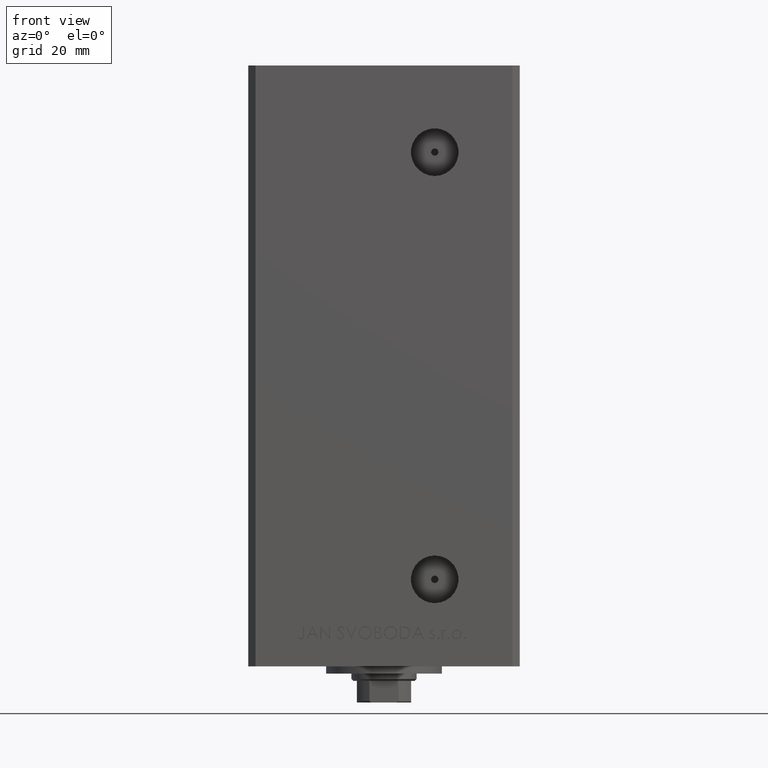
[diagram: clean part render]
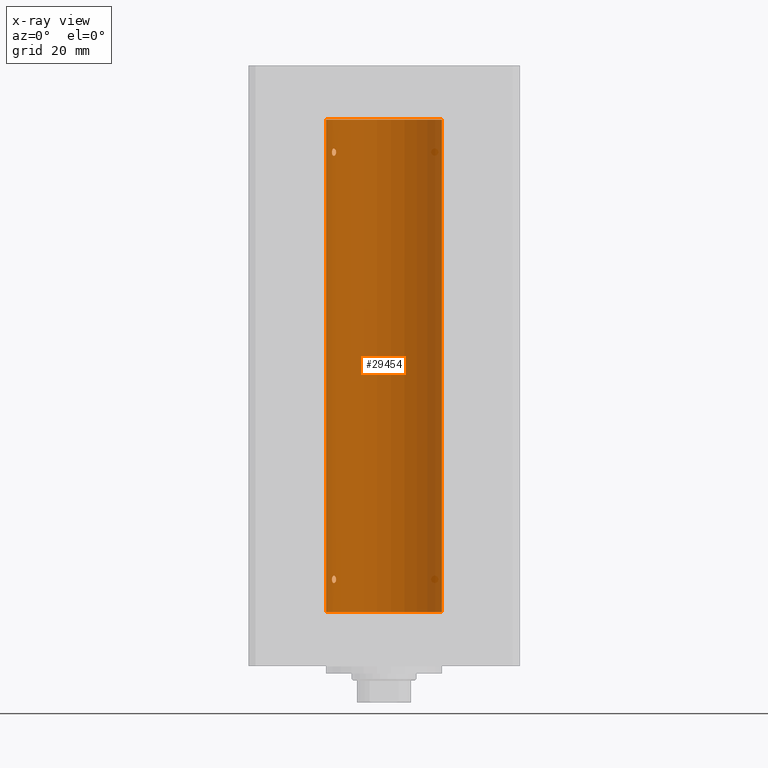
[diagram: x-ray — body ghosted, one internal face saturated and labeled with its STEP entity id]
A machine part, front view, then the same camera in x-ray: the body is ghosted and one INTERNAL B-rep face — a face not visible from any outside direction — is saturated and labeled: STEP entity #29454.
In plain terms, the highlighted cylindrical surface (partial cylindrical patch) has radius 16 mm, axis along (-0, -0, -1).
Its self-contained STEP definition (entity closure, byte-faithful):
#106 = CARTESIAN_POINT ( 'NONE',  ( 16.00000000000000000, 1.959434878635765131E-15, 136.0000000000000000 ) ) ;
#654 = CIRCLE ( 'NONE', #13508, 16.00000000000000000 ) ;
#929 = CARTESIAN_POINT ( 'NONE',  ( -13.77582987033440709, 8.139210687602719929, 126.0021105458418162 ) ) ;
#980 = VERTEX_POINT ( 'NONE', #25932 ) ;
#1410 = EDGE_CURVE ( 'NONE', #24896, #19451, #49692, .T. ) ;
#1881 = CARTESIAN_POINT ( 'NONE',  ( -13.22875655532296335, 8.999999999999982236, 9.000000000000007105 ) ) ;
#2157 = CARTESIAN_POINT ( 'NONE',  ( -13.22875655532295802, 8.999999999999996447, 127.0000000000000000 ) ) ;
#2638 = CARTESIAN_POINT ( 'NONE',  ( -14.17528142432534288, 7.421143801852442934, 8.173943073538671555 ) ) ;
#2669 = ORIENTED_EDGE ( 'NONE', *, *, #36361, .F. ) ;
#2679 = B_SPLINE_CURVE_WITH_KNOTS ( 'NONE', 3,
 ( #21490, #17214, #29012, #9912, #36542, #21735, #20736, #43584, #25245, #40806, #40302, #36792, #9406, #9654, #5883, #24499 ),
 .UNSPECIFIED., .F., .F.,
 ( 4, 2, 2, 2, 2, 2, 2, 4 ),
 ( 0.003377672193071779884, 0.003799209865779855366, 0.004220747538487930849, 0.005063822883904134722, 0.005485360556612237093, 0.005906898229320339463, 0.006328435902028442701, 0.006749973574736545072 ),
 .UNSPECIFIED. ) ;
#3028 = CARTESIAN_POINT ( 'NONE',  ( -14.38749456993815912, 6.999999999999998224, 127.0000000000000000 ) ) ;
#3132 = VECTOR ( 'NONE', #43440, 1000.000000000000000 ) ;
#3889 = B_SPLINE_CURVE_WITH_KNOTS ( 'NONE', 3,
 ( #22206, #6101, #33514, #21464, #48804, #29744, #36767, #13916, #29242, #30481, #19669, #45776, #38005, #42011, #49296, #34492 ),
 .UNSPECIFIED., .F., .F.,
 ( 4, 2, 2, 2, 2, 2, 2, 4 ),
 ( 0.003377672193071775547, 0.003799209865779873581, 0.004220747538487971615, 0.005063822883904167682, 0.005485360556612266583, 0.005906898229320366352, 0.006328435902028466120, 0.006749973574736565021 ),
 .UNSPECIFIED. ) ;
#3977 = B_SPLINE_CURVE_WITH_KNOTS ( 'NONE', 3,
 ( #29788, #17744, #33060, #48352, #13965, #2638, #48854, #33310, #26018, #44097, #48601, #44847, #6657, #9677, #25019, #18243, #6897, #40325, #36318, #1881 ),
 .UNSPECIFIED., .F., .F.,
 ( 4, 2, 2, 2, 2, 2, 2, 2, 2, 4 ),
 ( 0.000000000000000000, 0.0004222090241339719434, 0.0008444180482679438868, 0.001266627072401915830, 0.001688836096535887774, 0.002111045120669859717, 0.002533254144803831660, 0.002955463168937803604, 0.003166567681004789359, 0.003377672193071775547 ),
 .UNSPECIFIED. ) ;
#5429 = CARTESIAN_POINT ( 'NONE',  ( -14.38749456993815912, 6.999999999999998224, 127.0000000000000000 ) ) ;
#5677 = CARTESIAN_POINT ( 'NONE',  ( -14.31660136508398828, 7.144151923086063505, 126.4646217954444580 ) ) ;
#5819 = EDGE_LOOP ( 'NONE', ( #30540, #33335 ) ) ;
#5883 = CARTESIAN_POINT ( 'NONE',  ( -14.38749456993815734, 6.999999999999997335, 127.1426254415242454 ) ) ;
#5930 = CARTESIAN_POINT ( 'NONE',  ( -13.91838063522421010, 7.892966471903945624, 125.9981483133086897 ) ) ;
#6101 = CARTESIAN_POINT ( 'NONE',  ( -13.22875655532296335, 8.999999999999978684, 9.140644760917750133 ) ) ;
#6474 = CARTESIAN_POINT ( 'NONE',  ( -14.38749456993816800, 6.999999999999984013, 9.000000000000007105 ) ) ;
#6657 = CARTESIAN_POINT ( 'NONE',  ( -13.49759407097375608, 8.592283911330213186, 8.184099152127679133 ) ) ;
#6791 = FACE_BOUND ( 'NONE', #5819, .T. ) ;
#6897 = CARTESIAN_POINT ( 'NONE',  ( -13.25390108270226364, 8.962947079338375644, 8.721435762358465738 ) ) ;
#7990 = CARTESIAN_POINT ( 'NONE',  ( -16.00000000000000000, 0.000000000000000000, 136.0000000000000000 ) ) ;
#9256 = LINE ( 'NONE', #28125, #3132 ) ;
#9297 = CIRCLE ( 'NONE', #31092, 16.00000000000000000 ) ;
#9406 = CARTESIAN_POINT ( 'NONE',  ( -14.31650799088418147, 7.144337649771908438, 127.5355226273736662 ) ) ;
#9535 = VERTEX_POINT ( 'NONE', #6474 ) ;
#9654 = CARTESIAN_POINT ( 'NONE',  ( -14.37227256866306213, 7.031482256185711321, 127.2844572409764794 ) ) ;
#9677 = CARTESIAN_POINT ( 'NONE',  ( -13.37674940693423054, 8.779234808442856419, 8.360244157126787812 ) ) ;
#9704 = CARTESIAN_POINT ( 'NONE',  ( -14.17528142432533755, 7.421143801852455368, 126.1739430735386520 ) ) ;
#9912 = CARTESIAN_POINT ( 'NONE',  ( -13.32457971225032622, 8.857769707964648020, 127.5319996627465571 ) ) ;
#10073 = DIRECTION ( 'NONE',  ( -0.000000000000000000, -0.000000000000000000, -1.000000000000000000 ) ) ;
#11269 = VECTOR ( 'NONE', #30870, 1000.000000000000000 ) ;
#13340 = ORIENTED_EDGE ( 'NONE', *, *, #42215, .F. ) ;
#13362 = CARTESIAN_POINT ( 'NONE',  ( -16.00000000000000000, 0.000000000000000000, 136.0000000000000000 ) ) ;
#13484 = CARTESIAN_POINT ( 'NONE',  ( -14.11621438951177687, 7.533308783217008475, 126.1065710718394826 ) ) ;
#13508 = AXIS2_PLACEMENT_3D ( 'NONE', #16888, #20906, #46529 ) ;
#13916 = CARTESIAN_POINT ( 'NONE',  ( -13.91892506969883669, 7.891973478508838902, 10.00155212263245375 ) ) ;
#13965 = CARTESIAN_POINT ( 'NONE',  ( -14.27547848986623258, 7.226527013162171720, 8.352555730181538962 ) ) ;
#14038 = VERTEX_POINT ( 'NONE', #39813 ) ;
#14246 = CARTESIAN_POINT ( 'NONE',  ( -13.25390108270225120, 8.962947079338391632, 126.7214357623584817 ) ) ;
#14491 = CARTESIAN_POINT ( 'NONE',  ( -13.23400746336172240, 8.992294519018086518, 126.8578145590230406 ) ) ;
#14736 = CARTESIAN_POINT ( 'NONE',  ( -13.32426099938365383, 8.858246960865844954, 126.4688748775329969 ) ) ;
#14882 = AXIS2_PLACEMENT_3D ( 'NONE', #40216, #10073, #48489 ) ;
#15889 = CARTESIAN_POINT ( 'NONE',  ( 0.000000000000000000, 0.000000000000000000, 136.0000000000000000 ) ) ;
#16564 = EDGE_CURVE ( 'NONE', #14038, #9535, #3889, .T. ) ;
#16617 = B_SPLINE_CURVE_WITH_KNOTS ( 'NONE', 3,
 ( #5429, #43140, #31843, #5677, #47879, #9704, #13484, #25047, #5930, #929, #47145, #28075, #24306, #39614, #14736, #36842, #14246, #14491, #25293, #2157 ),
 .UNSPECIFIED., .F., .F.,
 ( 4, 2, 2, 2, 2, 2, 2, 2, 2, 4 ),
 ( 0.000000000000000000, 0.0004222090241339633240, 0.0008444180482679266480, 0.001266627072401889809, 0.001688836096535853296, 0.002111045120669816783, 0.002533254144803779619, 0.002955463168937742888, 0.003166567681004761603, 0.003377672193071779884 ),
 .UNSPECIFIED. ) ;
#16888 = CARTESIAN_POINT ( 'NONE',  ( 0.000000000000000000, 0.000000000000000000, 0.000000000000000000 ) ) ;
#16949 = ORIENTED_EDGE ( 'NONE', *, *, #20631, .F. ) ;
#17214 = CARTESIAN_POINT ( 'NONE',  ( -13.22875655532296157, 8.999999999999994671, 127.1406447609177661 ) ) ;
#17519 = EDGE_LOOP ( 'NONE', ( #2669, #16949 ) ) ;
#17744 = CARTESIAN_POINT ( 'NONE',  ( -14.38749456993816445, 6.999999999999982236, 8.857147409635420132 ) ) ;
#18243 = CARTESIAN_POINT ( 'NONE',  ( -13.26838749541401263, 8.941532915076029653, 8.656217793921380022 ) ) ;
#18384 = FACE_BOUND ( 'NONE', #17519, .T. ) ;
#18688 = CARTESIAN_POINT ( 'NONE',  ( -13.22875655532295802, 8.999999999999996447, 127.0000000000000000 ) ) ;
#19451 = VERTEX_POINT ( 'NONE', #41713 ) ;
#19669 = CARTESIAN_POINT ( 'NONE',  ( -14.17576283486775779, 7.420212263225971050, 9.825253034304363808 ) ) ;
#20631 = EDGE_CURVE ( 'NONE', #21666, #29394, #2679, .T. ) ;
#20736 = CARTESIAN_POINT ( 'NONE',  ( -13.70792461986390798, 8.256614593260307444, 127.9966215356423191 ) ) ;
#20906 = DIRECTION ( 'NONE',  ( -0.000000000000000000, 0.000000000000000000, 1.000000000000000000 ) ) ;
#21464 = CARTESIAN_POINT ( 'NONE',  ( -13.32457971225033866, 8.857769707964637362, 9.531999662746560631 ) ) ;
#21490 = CARTESIAN_POINT ( 'NONE',  ( -13.22875655532295802, 8.999999999999996447, 127.0000000000000000 ) ) ;
#21666 = VERTEX_POINT ( 'NONE', #18688 ) ;
#21735 = CARTESIAN_POINT ( 'NONE',  ( -13.55800260393081835, 8.498809056167509368, 127.9036434462101681 ) ) ;
#21899 = EDGE_CURVE ( 'NONE', #28018, #24896, #9297, .T. ) ;
#22206 = CARTESIAN_POINT ( 'NONE',  ( -13.22875655532296335, 8.999999999999982236, 9.000000000000007105 ) ) ;
#22415 = ORIENTED_EDGE ( 'NONE', *, *, #36950, .F. ) ;
#24306 = CARTESIAN_POINT ( 'NONE',  ( -13.49759407097375075, 8.592283911330223845, 126.1840991521276862 ) ) ;
#24499 = CARTESIAN_POINT ( 'NONE',  ( -14.38749456993815912, 6.999999999999998224, 127.0000000000000000 ) ) ;
#24896 = VERTEX_POINT ( 'NONE', #13362 ) ;
#25019 = CARTESIAN_POINT ( 'NONE',  ( -13.32426099938365915, 8.858246960865836073, 8.468874877532975631 ) ) ;
#25047 = CARTESIAN_POINT ( 'NONE',  ( -13.98699950016872151, 7.770591669637114229, 126.0184768166484588 ) ) ;
#25245 = CARTESIAN_POINT ( 'NONE',  ( -13.98878315975728803, 7.767347947480344850, 127.9805461432612645 ) ) ;
#25293 = CARTESIAN_POINT ( 'NONE',  ( -13.22875655532295625, 8.999999999999994671, 126.9295656223616220 ) ) ;
#25932 = CARTESIAN_POINT ( 'NONE',  ( 16.00000000000000000, 1.959434878635765131E-15, 0.000000000000000000 ) ) ;
#26018 = CARTESIAN_POINT ( 'NONE',  ( -13.91838063522421542, 7.892966471903923420, 7.998148313308686141 ) ) ;
#27198 = EDGE_CURVE ( 'NONE', #9535, #14038, #3977, .T. ) ;
#28018 = VERTEX_POINT ( 'NONE', #106 ) ;
#28075 = CARTESIAN_POINT ( 'NONE',  ( -13.56386909142669772, 8.487613976483636691, 126.1182242979960790 ) ) ;
#28125 = CARTESIAN_POINT ( 'NONE',  ( 16.00000000000000000, 1.959434878635765131E-15, 136.0000000000000000 ) ) ;
#29012 = CARTESIAN_POINT ( 'NONE',  ( -13.24976519864029179, 8.969293778684573226, 127.2815352263351514 ) ) ;
#29242 = CARTESIAN_POINT ( 'NONE',  ( -13.98878315975730224, 7.767347947480332415, 9.980546143261287639 ) ) ;
#29394 = VERTEX_POINT ( 'NONE', #3028 ) ;
#29454 = ADVANCED_FACE ( 'NONE', ( #33203, #6791, #18384 ), #47737, .F. ) ;
#29744 = CARTESIAN_POINT ( 'NONE',  ( -13.55800260393082901, 8.498809056167502263, 9.903643446210180556 ) ) ;
#29788 = CARTESIAN_POINT ( 'NONE',  ( -14.38749456993816800, 6.999999999999984013, 9.000000000000007105 ) ) ;
#30481 = CARTESIAN_POINT ( 'NONE',  ( -14.11618354197462644, 7.533333301880464461, 9.893207651933423108 ) ) ;
#30540 = ORIENTED_EDGE ( 'NONE', *, *, #27198, .F. ) ;
#30870 = DIRECTION ( 'NONE',  ( -0.000000000000000000, -0.000000000000000000, -1.000000000000000000 ) ) ;
#31092 = AXIS2_PLACEMENT_3D ( 'NONE', #15889, #38248, #43005 ) ;
#31843 = CARTESIAN_POINT ( 'NONE',  ( -14.37250282441143945, 7.031013007322939323, 126.7168569960372935 ) ) ;
#33060 = CARTESIAN_POINT ( 'NONE',  ( -14.37250282441144655, 7.031013007322923336, 8.716856996037272154 ) ) ;
#33203 = FACE_OUTER_BOUND ( 'NONE', #45773, .T. ) ;
#33310 = CARTESIAN_POINT ( 'NONE',  ( -13.98699950016873039, 7.770591669637105348, 8.018476816648488992 ) ) ;
#33335 = ORIENTED_EDGE ( 'NONE', *, *, #16564, .F. ) ;
#33514 = CARTESIAN_POINT ( 'NONE',  ( -13.24976519864029889, 8.969293778684560792, 9.281535226335167366 ) ) ;
#34492 = CARTESIAN_POINT ( 'NONE',  ( -14.38749456993816800, 6.999999999999984013, 9.000000000000007105 ) ) ;
#35684 = ORIENTED_EDGE ( 'NONE', *, *, #21899, .T. ) ;
#36318 = CARTESIAN_POINT ( 'NONE',  ( -13.22875655532296513, 8.999999999999982236, 8.929565622361650412 ) ) ;
#36361 = EDGE_CURVE ( 'NONE', #29394, #21666, #16617, .T. ) ;
#36542 = CARTESIAN_POINT ( 'NONE',  ( -13.37741691572086111, 8.778212469423007036, 127.6408828602271512 ) ) ;
#36767 = CARTESIAN_POINT ( 'NONE',  ( -13.70792461986391864, 8.256614593260295010, 9.996621535642280065 ) ) ;
#36792 = CARTESIAN_POINT ( 'NONE',  ( -14.27521483392928836, 7.227035590538638310, 127.6478598706881371 ) ) ;
#36842 = CARTESIAN_POINT ( 'NONE',  ( -13.26838749541400908, 8.941532915076043864, 126.6562177939213854 ) ) ;
#36950 = EDGE_CURVE ( 'NONE', #980, #19451, #654, .T. ) ;
#38005 = CARTESIAN_POINT ( 'NONE',  ( -14.31650799088419213, 7.144337649771898668, 9.535522627373698157 ) ) ;
#38248 = DIRECTION ( 'NONE',  ( -0.000000000000000000, 0.000000000000000000, 1.000000000000000000 ) ) ;
#39614 = CARTESIAN_POINT ( 'NONE',  ( -13.37674940693422876, 8.779234808442867077, 126.3602441571267718 ) ) ;
#39813 = CARTESIAN_POINT ( 'NONE',  ( -13.22875655532296335, 8.999999999999982236, 9.000000000000007105 ) ) ;
#40216 = CARTESIAN_POINT ( 'NONE',  ( 0.000000000000000000, 0.000000000000000000, 136.0000000000000000 ) ) ;
#40302 = CARTESIAN_POINT ( 'NONE',  ( -14.17576283486774891, 7.420212263225987925, 127.8252530343043958 ) ) ;
#40325 = CARTESIAN_POINT ( 'NONE',  ( -13.23400746336173484, 8.992294519018072307, 8.857814559023026391 ) ) ;
#40806 = CARTESIAN_POINT ( 'NONE',  ( -14.11618354197461400, 7.533333301880474231, 127.8932076519334373 ) ) ;
#41713 = CARTESIAN_POINT ( 'NONE',  ( -16.00000000000000000, 0.000000000000000000, 0.000000000000000000 ) ) ;
#42011 = CARTESIAN_POINT ( 'NONE',  ( -14.37227256866306746, 7.031482256185695334, 9.284457240976488279 ) ) ;
#42215 = EDGE_CURVE ( 'NONE', #28018, #980, #9256, .T. ) ;
#43005 = DIRECTION ( 'NONE',  ( 1.000000000000000000, 0.000000000000000000, 0.000000000000000000 ) ) ;
#43140 = CARTESIAN_POINT ( 'NONE',  ( -14.38749456993816267, 6.999999999999999112, 126.8571474096354450 ) ) ;
#43440 = DIRECTION ( 'NONE',  ( -0.000000000000000000, -0.000000000000000000, -1.000000000000000000 ) ) ;
#43584 = CARTESIAN_POINT ( 'NONE',  ( -13.91892506969882071, 7.891973478508848672, 128.0015521226323472 ) ) ;
#44097 = CARTESIAN_POINT ( 'NONE',  ( -13.77582987033441952, 8.139210687602698613, 8.002110545841825129 ) ) ;
#44847 = CARTESIAN_POINT ( 'NONE',  ( -13.56386909142670660, 8.487613976483618927, 8.118224297996086136 ) ) ;
#44948 = ORIENTED_EDGE ( 'NONE', *, *, #1410, .T. ) ;
#45773 = EDGE_LOOP ( 'NONE', ( #13340, #35684, #44948, #22415 ) ) ;
#45776 = CARTESIAN_POINT ( 'NONE',  ( -14.27521483392929902, 7.227035590538620546, 9.647859870688199280 ) ) ;
#46529 = DIRECTION ( 'NONE',  ( 1.000000000000000000, 0.000000000000000000, 0.000000000000000000 ) ) ;
#47145 = CARTESIAN_POINT ( 'NONE',  ( -13.70481462797717676, 8.258098555717509726, 126.0259974772911562 ) ) ;
#47737 = CYLINDRICAL_SURFACE ( 'NONE', #14882, 16.00000000000000000 ) ;
#47879 = CARTESIAN_POINT ( 'NONE',  ( -14.27547848986622370, 7.226527013162184154, 126.3525557301815354 ) ) ;
#48352 = CARTESIAN_POINT ( 'NONE',  ( -14.31660136508400072, 7.144151923086045741, 8.464621795444484675 ) ) ;
#48489 = DIRECTION ( 'NONE',  ( -1.000000000000000000, 0.000000000000000000, 0.000000000000000000 ) ) ;
#48601 = CARTESIAN_POINT ( 'NONE',  ( -13.70481462797718386, 8.258098555717490186, 8.025997477291141990 ) ) ;
#48804 = CARTESIAN_POINT ( 'NONE',  ( -13.37741691572086467, 8.778212469422998154, 9.640882860227108608 ) ) ;
#48854 = CARTESIAN_POINT ( 'NONE',  ( -14.11621438951178575, 7.533308783216997817, 8.106571071839523412 ) ) ;
#49296 = CARTESIAN_POINT ( 'NONE',  ( -14.38749456993816978, 6.999999999999985789, 9.142625441524216967 ) ) ;
#49692 = LINE ( 'NONE', #7990, #11269 ) ;